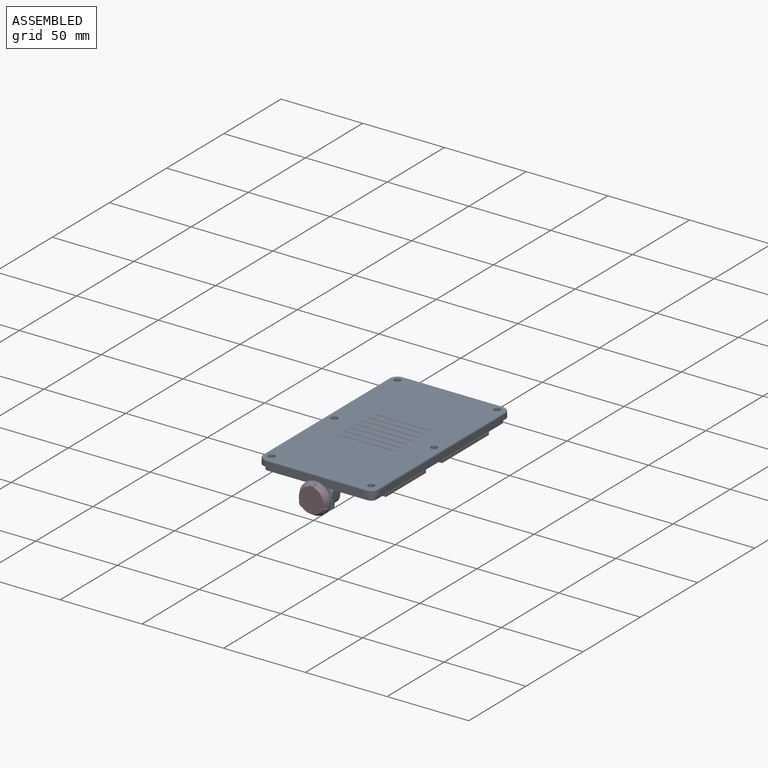
[diagram: assembled view]
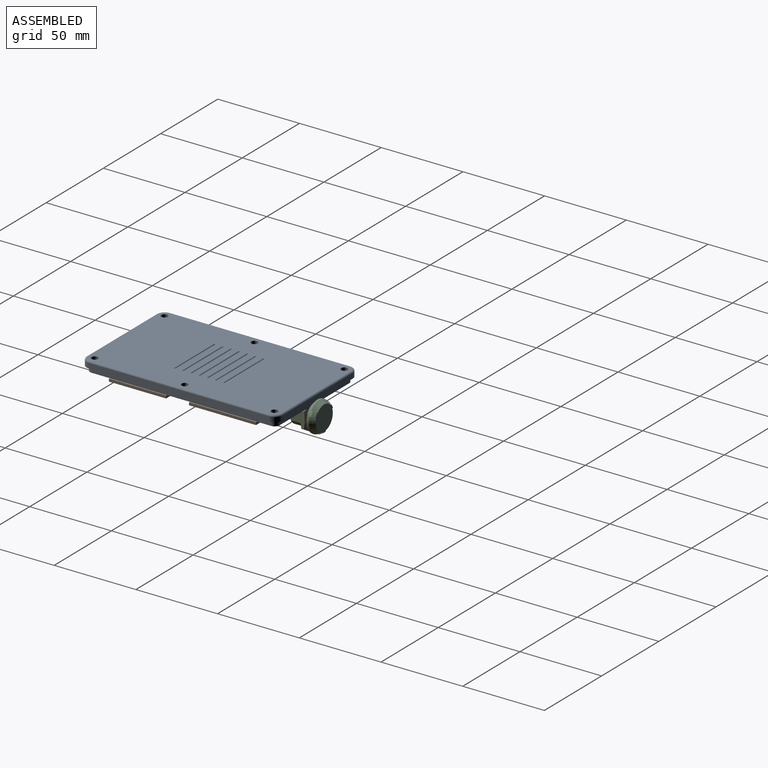
[diagram: assembled view, second angle]
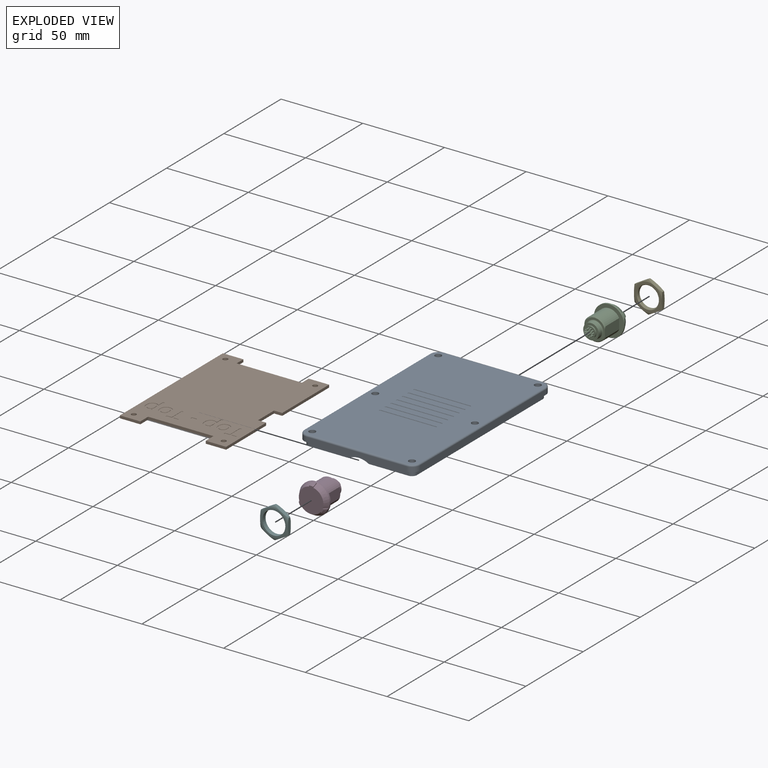
[diagram: exploded view]
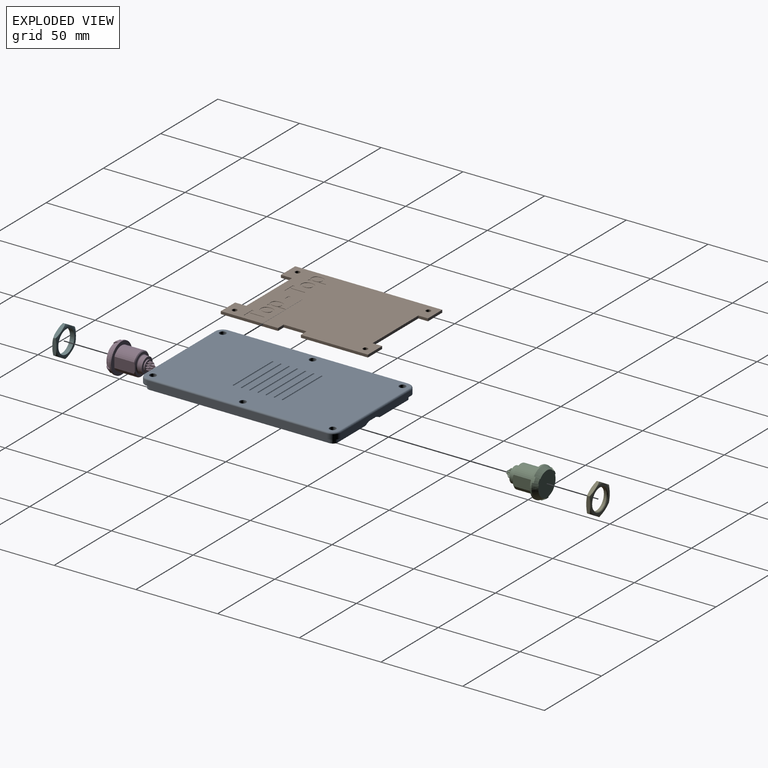
[diagram: exploded view, second angle]
ASSEMBLY  parts=6 mates=4
PART A: 78 faces, bbox 71.8x120.8x7 mm
  f0: plane 118x69mm, normal (0,0,1), area 7809.2mm2, adj f18,f19,f20,f21,f22,f23,f24,f25
  f1: plane 116x27.33mm, normal (0,0,-1), area 942.5mm2, adj f3,f4,f5,f26,f27,f28,f29,f30
  f2: plane 116x27.33mm, normal (0,0,-1), area 942.5mm2, adj f6,f7,f8,f26,f30,f31,f32,f33
  f3: cylinder r=1mm len=3mm, axis (0,0,1), area 18.8mm2, adj f1,f45
  f4: cylinder r=1mm len=3mm, axis (0,0,1), area 18.8mm2, adj f1,f43
  f5: cylinder r=1mm len=3mm, axis (0,0,1), area 18.8mm2, adj f1,f41
  f6: cylinder r=1mm len=3mm, axis (0,0,1), area 18.8mm2, adj f2,f38
  f7: cylinder r=1mm len=3mm, axis (0,0,1), area 18.8mm2, adj f2,f36
  f8: cylinder r=1mm len=3mm, axis (0,0,1), area 18.8mm2, adj f2,f34
  f9: plane 120x71mm, normal (0,0,-1), area 734.3mm2, adj f10,f11,f12,f13,f14,f15,f16,f17
  f10: plane 61x3mm, normal (0,1,0), area 183mm2, adj f9,f14,f17,f23
  f11: plane 110x3mm, normal (-1,0,0), area 330mm2, adj f9,f14,f15,f24
  f12: plane 61x3mm, normal (0,-1,0), area 183mm2, adj f9,f15,f16,f20
  f13: plane 110x3mm, normal (1,0,0), area 330mm2, adj f9,f16,f17,f19
  f14: cylinder r=5mm len=5mm, axis (0,0,1), area 23.6mm2, adj f9,f10,f11,f25
  f15: cylinder r=5mm len=5mm, axis (0,0,-1), area 23.6mm2, adj f9,f11,f12,f22
  f16: cylinder r=5mm len=5mm, axis (0,0,1), area 23.6mm2, adj f9,f12,f13,f18
  f17: cylinder r=5mm len=5mm, axis (0,0,-1), area 23.6mm2, adj f9,f10,f13,f21
  f18: torus R=4mm, axis (0,0,1), area 11.4mm2, adj f0,f16,f19,f20
  f19: cylinder r=1mm len=110mm, axis (0,-1,0), area 172.8mm2, adj f0,f13,f18,f21
  f20: cylinder r=1mm len=61mm, axis (-1,0,0), area 95.8mm2, adj f0,f12,f18,f22
  f21: torus R=4mm, axis (0,0,1), area 11.4mm2, adj f0,f17,f19,f23
  f22: torus R=4mm, axis (0,0,1), area 11.4mm2, adj f0,f15,f20,f24
  f23: cylinder r=1mm len=61mm, axis (1,0,0), area 95.8mm2, adj f0,f10,f21,f25
  f24: cylinder r=1mm len=110mm, axis (0,1,0), area 172.8mm2, adj f0,f11,f22,f25
  f25: torus R=4mm, axis (0,0,1), area 11.4mm2, adj f0,f14,f23,f24
  f26: plane 61x3mm, normal (0,1,0), area 168.4mm2, adj f1,f2,f9,f27,f33,f55
  f27: cylinder r=3mm len=3mm, axis (0,0,1), area 14.1mm2, adj f1,f9,f26,f28
  f28: plane 110x3mm, normal (1,0,0), area 330mm2, adj f1,f9,f27,f29
  f29: cylinder r=3mm len=3mm, axis (0,0,1), area 14.1mm2, adj f1,f9,f28,f30
  f30: plane 61x3mm, normal (0,-1,0), area 168.4mm2, adj f1,f2,f9,f29,f31,f56
  f31: cylinder r=3mm len=3mm, axis (0,0,1), area 14.1mm2, adj f2,f9,f30,f32
  f32: plane 110x3mm, normal (-1,0,0), area 330mm2, adj f2,f9,f31,f33
  f33: cylinder r=3mm len=3mm, axis (0,0,1), area 14.1mm2, adj f2,f9,f26,f32
  f34: plane 4x4mm, normal (0,0,1), area 9.4mm2, adj f8,f35
  f35: cylinder r=2mm len=4mm, axis (0,0,1), area 50.3mm2, adj f0,f34
  f36: plane 4x4mm, normal (0,0,1), area 9.4mm2, adj f7,f37
  f37: cylinder r=2mm len=4mm, axis (0,0,1), area 50.3mm2, adj f0,f36
  f38: plane 4x4mm, normal (0,0,1), area 9.4mm2, adj f6,f39
  f39: cylinder r=2mm len=4mm, axis (0,0,1), area 50.3mm2, adj f0,f38
  f40: cylinder r=2mm len=4mm, axis (0,0,1), area 50.3mm2, adj f0,f41
  f41: plane 4x4mm, normal (0,0,1), area 9.4mm2, adj f5,f40
  f42: cylinder r=2mm len=4mm, axis (0,0,1), area 50.3mm2, adj f0,f43
  f43: plane 4x4mm, normal (0,0,1), area 9.4mm2, adj f4,f42
  f44: cylinder r=2mm len=4mm, axis (0,0,1), area 50.3mm2, adj f0,f45
  f45: plane 4x4mm, normal (0,0,1), area 9.4mm2, adj f3,f44
  f46: plane 49x5.5mm, normal (0,1,0), area 254.9mm2, adj f1,f2,f47,f53,f54,f56
  f47: cylinder r=3mm len=5.5mm, axis (0,0,-1), area 25.9mm2, adj f2,f46,f48,f54
  f48: plane 98x5.5mm, normal (1,0,0), area 539mm2, adj f2,f47,f49,f54
  f49: cylinder r=3mm len=5.5mm, axis (0,0,-1), area 25.9mm2, adj f2,f48,f50,f54
  f50: plane 49x5.5mm, normal (0,-1,0), area 254.9mm2, adj f1,f2,f49,f51,f54,f55
  f51: cylinder r=3mm len=5.5mm, axis (0,0,-1), area 25.9mm2, adj f1,f50,f52,f54
  f52: plane 98x5.5mm, normal (-1,0,0), area 539mm2, adj f1,f51,f53,f54
  f53: cylinder r=3mm len=5.5mm, axis (0,0,-1), area 25.9mm2, adj f1,f46,f52,f54
  f54: plane 104x55mm, normal (0,0,-1), area 5712.3mm2, adj f46,f47,f48,f49,f50,f51,f52,f53
  f55: cylinder r=11.75mm len=12.34mm, axis (0,-1,0), area 77.9mm2, adj f1,f2,f26,f50
  f56: cylinder r=11.75mm len=12.34mm, axis (0,-1,0), area 77.9mm2, adj f1,f2,f30,f46
  f57: cylinder r=0.5mm len=34mm, axis (1,0,0), area 53.4mm2, adj f0,f76,f77
  f58: cylinder r=0.5mm len=34mm, axis (1,0,0), area 53.4mm2, adj f0,f66,f67
  f59: cylinder r=0.5mm len=34.5mm, axis (1,0,0), area 54.2mm2, adj f0,f60,f68
  f60: plane 1x0.5mm, normal (-1,0,0), area 0.4mm2, adj f0,f59
  f61: cylinder r=0.5mm len=34mm, axis (1,0,0), area 53.4mm2, adj f0,f74,f75
  f62: cylinder r=0.5mm len=34mm, axis (1,0,0), area 53.4mm2, adj f0,f72,f73
  f63: cylinder r=0.5mm len=34mm, axis (1,0,0), area 53.4mm2, adj f0,f70,f71
  f64: cylinder r=0.5mm len=34.5mm, axis (1,0,0), area 54.2mm2, adj f0,f65,f69
  f65: plane 1x0.5mm, normal (-1,0,0), area 0.4mm2, adj f0,f64
  f66: sphere r=0.5mm, area 0.8mm2, adj f0,f58
  f67: sphere r=0.5mm, area 0.8mm2, adj f0,f58
  f68: sphere r=0.5mm, area 0.8mm2, adj f0,f59
  f69: sphere r=0.5mm, area 0.8mm2, adj f0,f64
  f70: sphere r=0.5mm, area 0.8mm2, adj f0,f63
  f71: sphere r=0.5mm, area 0.8mm2, adj f0,f63
  f72: sphere r=0.5mm, area 0.8mm2, adj f0,f62
  f73: sphere r=0.5mm, area 0.8mm2, adj f0,f62
  f74: sphere r=0.5mm, area 0.8mm2, adj f0,f61
  f75: sphere r=0.5mm, area 0.8mm2, adj f0,f61
  f76: sphere r=0.5mm, area 0.8mm2, adj f0,f57
  f77: sphere r=0.5mm, area 0.8mm2, adj f0,f57
PART B: 137 faces, bbox 65x90x1.6 mm
  f0: plane 90x65mm, normal (0,0,-1), area 5031mm2, adj f1,f2,f3,f4,f5,f6,f7,f8
  f1: plane 12.5x1.6mm, normal (0,1,0), area 20mm2, adj f0,f2,f19,f21
  f2: plane 90x1.6mm, normal (-1,0,0), area 144mm2, adj f0,f1,f3,f21
  f3: plane 12.5x1.6mm, normal (0,-1,0), area 20mm2, adj f0,f2,f4,f21
  f4: plane 5.88x1.6mm, normal (1,0,0), area 9.4mm2, adj f0,f3,f5,f21
  f5: plane 40x1.6mm, normal (0,-1,0), area 64mm2, adj f0,f4,f6,f21
  f6: plane 5.88x1.6mm, normal (-1,0,0), area 9.4mm2, adj f0,f5,f7,f21
  f7: plane 12.5x1.6mm, normal (0,-1,0), area 20mm2, adj f0,f6,f8,f21
  f8: plane 41x1.6mm, normal (1,0,0), area 65.6mm2, adj f0,f7,f9,f21
  f9: plane 5x1.6mm, normal (0,1,0), area 8mm2, adj f0,f8,f10,f21
  f10: plane 14x1.6mm, normal (1,0,0), area 22.4mm2, adj f0,f9,f11,f21
  f11: plane 5x1.6mm, normal (0,-1,0), area 8mm2, adj f0,f10,f12,f21
  f12: plane 35x1.6mm, normal (1,0,0), area 56mm2, adj f0,f11,f13,f21
  f13: plane 12.5x1.6mm, normal (0,1,0), area 20mm2, adj f0,f12,f14,f21
  f14: plane 6.81x1.6mm, normal (-1,0,0), area 10.9mm2, adj f0,f13,f15,f21
  f15: plane 40x1.6mm, normal (0,1,0), area 64mm2, adj f0,f14,f19,f21
  f16: cylinder r=1.5mm len=3mm, axis (0,0,-1), area 15.1mm2, adj f0,f21
  f17: cylinder r=1.5mm len=3mm, axis (0,0,-1), area 15.1mm2, adj f0,f21
  f18: cylinder r=1.5mm len=3mm, axis (0,0,-1), area 15.1mm2, adj f0,f21
  f19: plane 6.81x1.6mm, normal (1,0,0), area 10.9mm2, adj f0,f1,f15,f21
  f20: cylinder r=1.5mm len=3mm, axis (0,0,-1), area 15.1mm2, adj f0,f21
  f21: plane 90x65mm, normal (0,0,1), area 5244mm2, adj f1,f2,f3,f4,f5,f6,f7,f8
  f22: extruded ~1.62x0.62mm, area 0.4mm2, adj f23,f46,f47,f133
  f23: extruded ~1.51x0.73mm, area 0.3mm2, adj f22,f24,f47,f133
  f24: extruded ~2.1x0.54mm, area 0.4mm2, adj f23,f25,f47,f133
  f25: extruded ~2.11x0.54mm, area 0.4mm2, adj f24,f26,f47,f133
  f26: extruded ~1.48x0.77mm, area 0.3mm2, adj f25,f27,f47,f133
  f27: extruded ~1.64x0.66mm, area 0.4mm2, adj f26,f28,f47,f133
  f28: extruded ~2.2x0.51mm, area 0.5mm2, adj f27,f29,f47,f133
  f29: plane 0.25x0.2mm, normal (1,0,0), area 0mm2, adj f28,f46,f47,f133
  f30: extruded ~1.3x0.26mm, area 0.3mm2, adj f0,f31,f45,f47
  f31: extruded ~2.23x1mm, area 0.5mm2, adj f0,f30,f32,f47
  f32: extruded ~2.8x0.8mm, area 0.6mm2, adj f0,f31,f33,f47
  f33: extruded ~2.78x0.79mm, area 0.6mm2, adj f0,f32,f34,f47
  f34: extruded ~2.24x0.99mm, area 0.5mm2, adj f0,f33,f35,f47
  f35: extruded ~1.3x0.27mm, area 0.3mm2, adj f0,f34,f36,f47
  f36: extruded ~0.99x0.87mm, area 0.3mm2, adj f0,f35,f37,f47
  f37: plane 0.2x0.05mm, normal (0,-1,0), area 0mm2, adj f0,f36,f38,f47
  f38: plane 1x0.2mm, normal (0.99,-0.15,0), area 0.2mm2, adj f0,f37,f39,f47
  f39: plane 0.9x0.2mm, normal (0,-1,0), area 0.2mm2, adj f0,f38,f40,f47
  f40: plane 10.58x0.2mm, normal (-1,0,0), area 2.1mm2, adj f0,f39,f41,f47
  f41: plane 1.11x0.2mm, normal (0,1,0), area 0.2mm2, adj f0,f40,f42,f47
  f42: plane 3.01x0.2mm, normal (1,0,0), area 0.6mm2, adj f0,f41,f43,f47
  f43: extruded ~1.21x0.2mm, area 0.2mm2, adj f0,f42,f44,f47
  f44: plane 0.2x0.08mm, normal (0,1,0), area 0mm2, adj f0,f43,f45,f47
  f45: extruded ~0.99x0.81mm, area 0.3mm2, adj f0,f30,f44,f47
  f46: extruded ~1.97x0.51mm, area 0.4mm2, adj f22,f29,f47,f133
  f47: plane 10.71x6.43mm, normal (0,0,-1), area 26.4mm2, adj f22,f23,f24,f25,f26,f27,f28,f29
  f48: extruded ~2.13x0.56mm, area 0.4mm2, adj f49,f64,f65,f134
  f49: extruded ~2.12x0.55mm, area 0.4mm2, adj f48,f50,f65,f134
  f50: extruded ~1.64x0.71mm, area 0.4mm2, adj f49,f51,f65,f134
  f51: extruded ~1.66x0.72mm, area 0.4mm2, adj f50,f52,f65,f134
  f52: extruded ~2.11x0.56mm, area 0.4mm2, adj f51,f53,f65,f134
  f53: extruded ~2.14x0.56mm, area 0.4mm2, adj f52,f54,f65,f134
  f54: extruded ~1.65x0.73mm, area 0.4mm2, adj f53,f64,f65,f134
  f55: extruded ~2.79x0.9mm, area 0.6mm2, adj f0,f56,f63,f65
  f56: extruded ~2.76x0.9mm, area 0.6mm2, adj f0,f55,f57,f65
  f57: extruded ~2.43x1.02mm, area 0.5mm2, adj f0,f56,f58,f65
  f58: extruded ~2.48x1mm, area 0.6mm2, adj f0,f57,f59,f65
  f59: extruded ~2.78x0.89mm, area 0.6mm2, adj f0,f58,f60,f65
  f60: extruded ~2.01x0.41mm, area 0.4mm2, adj f0,f59,f61,f65
  f61: extruded ~1.32x1.17mm, area 0.4mm2, adj f0,f60,f62,f65
  f62: extruded ~1.74x0.46mm, area 0.4mm2, adj f0,f61,f63,f65
  f63: extruded ~2.48x1mm, area 0.6mm2, adj f0,f55,f62,f65
  f64: extruded ~1.64x0.73mm, area 0.4mm2, adj f48,f54,f65,f134
  f65: plane 7.57x6.71mm, normal (0,0,-1), area 20.5mm2, adj f48,f49,f50,f51,f52,f53,f54,f55
  f66: extruded ~1.62x0.62mm, area 0.4mm2, adj f67,f90,f91,f135
  f67: extruded ~1.51x0.73mm, area 0.3mm2, adj f66,f68,f91,f135
  f68: extruded ~2.1x0.54mm, area 0.4mm2, adj f67,f69,f91,f135
  f69: extruded ~2.11x0.54mm, area 0.4mm2, adj f68,f70,f91,f135
  f70: extruded ~1.48x0.77mm, area 0.3mm2, adj f69,f71,f91,f135
  f71: extruded ~1.64x0.66mm, area 0.4mm2, adj f70,f72,f91,f135
  f72: extruded ~2.2x0.51mm, area 0.5mm2, adj f71,f73,f91,f135
  f73: plane 0.25x0.2mm, normal (1,0,0), area 0mm2, adj f72,f90,f91,f135
  f74: extruded ~1.3x0.26mm, area 0.3mm2, adj f0,f75,f89,f91
  f75: extruded ~2.23x1mm, area 0.5mm2, adj f0,f74,f76,f91
  f76: extruded ~2.8x0.8mm, area 0.6mm2, adj f0,f75,f77,f91
  f77: extruded ~2.78x0.79mm, area 0.6mm2, adj f0,f76,f78,f91
  f78: extruded ~2.24x0.99mm, area 0.5mm2, adj f0,f77,f79,f91
  f79: extruded ~1.3x0.27mm, area 0.3mm2, adj f0,f78,f80,f91
  f80: extruded ~0.99x0.87mm, area 0.3mm2, adj f0,f79,f81,f91
  f81: plane 0.2x0.05mm, normal (0,-1,0), area 0mm2, adj f0,f80,f82,f91
  f82: plane 1x0.2mm, normal (0.99,-0.15,0), area 0.2mm2, adj f0,f81,f83,f91
  f83: plane 0.9x0.2mm, normal (0,-1,0), area 0.2mm2, adj f0,f82,f84,f91
  f84: plane 10.58x0.2mm, normal (-1,0,0), area 2.1mm2, adj f0,f83,f85,f91
  f85: plane 1.11x0.2mm, normal (0,1,0), area 0.2mm2, adj f0,f84,f86,f91
  f86: plane 3.01x0.2mm, normal (1,0,0), area 0.6mm2, adj f0,f85,f87,f91
  f87: extruded ~1.21x0.2mm, area 0.2mm2, adj f0,f86,f88,f91
  f88: plane 0.2x0.08mm, normal (0,1,0), area 0mm2, adj f0,f87,f89,f91
  f89: extruded ~0.99x0.81mm, area 0.3mm2, adj f0,f74,f88,f91
  f90: extruded ~1.97x0.51mm, area 0.4mm2, adj f66,f73,f91,f135
  f91: plane 10.71x6.43mm, normal (0,0,-1), area 26.4mm2, adj f66,f67,f68,f69,f70,f71,f72,f73
  f92: extruded ~2.13x0.56mm, area 0.4mm2, adj f93,f108,f109,f136
  f93: extruded ~2.12x0.55mm, area 0.4mm2, adj f92,f94,f109,f136
  f94: extruded ~1.64x0.71mm, area 0.4mm2, adj f93,f95,f109,f136
  f95: extruded ~1.66x0.72mm, area 0.4mm2, adj f94,f96,f109,f136
  f96: extruded ~2.11x0.56mm, area 0.4mm2, adj f95,f97,f109,f136
  f97: extruded ~2.14x0.56mm, area 0.4mm2, adj f96,f98,f109,f136
  f98: extruded ~1.65x0.73mm, area 0.4mm2, adj f97,f108,f109,f136
  f99: extruded ~2.79x0.9mm, area 0.6mm2, adj f0,f100,f107,f109
  f100: extruded ~2.76x0.9mm, area 0.6mm2, adj f0,f99,f101,f109
  f101: extruded ~2.43x1.02mm, area 0.5mm2, adj f0,f100,f102,f109
  f102: extruded ~2.48x1mm, area 0.6mm2, adj f0,f101,f103,f109
  f103: extruded ~2.78x0.89mm, area 0.6mm2, adj f0,f102,f104,f109
  f104: extruded ~2.01x0.41mm, area 0.4mm2, adj f0,f103,f105,f109
  f105: extruded ~1.32x1.17mm, area 0.4mm2, adj f0,f104,f106,f109
  f106: extruded ~1.74x0.46mm, area 0.4mm2, adj f0,f105,f107,f109
  f107: extruded ~2.48x1mm, area 0.6mm2, adj f0,f99,f106,f109
  f108: extruded ~1.64x0.73mm, area 0.4mm2, adj f92,f98,f109,f136
  f109: plane 7.57x6.71mm, normal (0,0,-1), area 20.5mm2, adj f92,f93,f94,f95,f96,f97,f98,f99
  f110: plane 1.13x0.2mm, normal (0,1,0), area 0.2mm2, adj f0,f111,f117,f118
  f111: plane 8.73x0.2mm, normal (1,0,0), area 1.7mm2, adj f0,f110,f112,f118
  f112: plane 3.08x0.2mm, normal (0,1,0), area 0.6mm2, adj f0,f111,f113,f118
  f113: plane 1.01x0.2mm, normal (1,0,0), area 0.2mm2, adj f0,f112,f114,f118
  f114: plane 7.3x0.2mm, normal (0,-1,0), area 1.5mm2, adj f0,f113,f115,f118
  f115: plane 1.01x0.2mm, normal (-1,0,0), area 0.2mm2, adj f0,f114,f116,f118
  f116: plane 3.08x0.2mm, normal (0,1,0), area 0.6mm2, adj f0,f115,f117,f118
  f117: plane 8.73x0.2mm, normal (-1,0,0), area 1.7mm2, adj f0,f110,f116,f118
  f118: plane 9.74x7.3mm, normal (0,0,-1), area 17.2mm2, adj f110,f111,f112,f113,f114,f115,f116,f117
  f119: plane 1.01x0.2mm, normal (-1,0,0), area 0.2mm2, adj f0,f120,f122,f123
  f120: plane 3.27x0.2mm, normal (0,1,0), area 0.7mm2, adj f0,f119,f121,f123
  f121: plane 1.01x0.2mm, normal (1,0,0), area 0.2mm2, adj f0,f120,f122,f123
  f122: plane 3.27x0.2mm, normal (0,-1,0), area 0.7mm2, adj f0,f119,f121,f123
  f123: plane 3.27x1.01mm, normal (0,0,-1), area 3.3mm2, adj f119,f120,f121,f122
  f124: plane 1.13x0.2mm, normal (0,1,0), area 0.2mm2, adj f0,f125,f131,f132
  f125: plane 8.73x0.2mm, normal (1,0,0), area 1.7mm2, adj f0,f124,f126,f132
  f126: plane 3.08x0.2mm, normal (0,1,0), area 0.6mm2, adj f0,f125,f127,f132
  f127: plane 1.01x0.2mm, normal (1,0,0), area 0.2mm2, adj f0,f126,f128,f132
  f128: plane 7.3x0.2mm, normal (0,-1,0), area 1.5mm2, adj f0,f127,f129,f132
  f129: plane 1.01x0.2mm, normal (-1,0,0), area 0.2mm2, adj f0,f128,f130,f132
  f130: plane 3.08x0.2mm, normal (0,1,0), area 0.6mm2, adj f0,f129,f131,f132
  f131: plane 8.73x0.2mm, normal (-1,0,0), area 1.7mm2, adj f0,f124,f130,f132
  f132: plane 9.74x7.3mm, normal (0,0,-1), area 17.2mm2, adj f124,f125,f126,f127,f128,f129,f130,f131
  f133: plane 5.7x4.18mm, normal (0,0,-1), area 19.9mm2, adj f22,f23,f24,f25,f26,f27,f28,f29
  f134: plane 5.7x4.42mm, normal (0,0,-1), area 20.9mm2, adj f48,f49,f50,f51,f52,f53,f54,f64
  f135: plane 5.7x4.18mm, normal (0,0,-1), area 19.9mm2, adj f66,f67,f68,f69,f70,f71,f72,f73
  f136: plane 5.7x4.42mm, normal (0,0,-1), area 20.9mm2, adj f92,f93,f94,f95,f96,f97,f98,f108
PART C: 97 faces, bbox 18.6x18.6x24.3 mm
  f0: torus R=5.28mm, axis (0,0,-1), area 24.5mm2, adj f32,f33
  f1: cylinder r=9.25mm len=18.5mm, axis (0,0,-1), area 67.8mm2, adj f4,f75,f76,f77,f78,f79,f80,f81
  f2: cylinder r=3.32mm len=6.65mm, axis (0,0,1), area 16.7mm2, adj f34,f41
  f3: cylinder r=0.22mm len=2.24mm, axis (0,0,-1), area 2.9mm2, adj f74,f82,f95
  f4: cone r=8.38mm half-angle=30deg, axis (0,0,1), area 50.7mm2, adj f1,f76,f80,f96
  f5: cylinder r=0.4mm len=2.24mm, axis (0,0,-1), area 5.3mm2, adj f41,f74,f82
  f6: cylinder r=0.4mm len=2.24mm, axis (0,0,-1), area 5.3mm2, adj f41,f54,f64
  f7: cylinder r=0.4mm len=2.24mm, axis (0,0,-1), area 5.3mm2, adj f41,f53,f63
  f8: cylinder r=0.4mm len=2.24mm, axis (0,0,-1), area 5.3mm2, adj f41,f52,f62
  f9: cylinder r=0.4mm len=2.24mm, axis (0,0,-1), area 5.3mm2, adj f41,f51,f61
  f10: cylinder r=0.4mm len=2.24mm, axis (0,0,-1), area 5.3mm2, adj f41,f50,f60
  f11: cylinder r=0.4mm len=2.24mm, axis (0,0,-1), area 5.3mm2, adj f41,f49,f59
  f12: cylinder r=0.4mm len=2.24mm, axis (0,0,-1), area 5.3mm2, adj f41,f48,f58
  f13: cylinder r=0.4mm len=2.24mm, axis (0,0,-1), area 5.3mm2, adj f41,f47,f57
  f14: cylinder r=0.4mm len=2.24mm, axis (0,0,-1), area 5.3mm2, adj f41,f55,f56
  f15: cylinder r=0.22mm len=2.24mm, axis (0,0,-1), area 2.9mm2, adj f55,f56,f83
  f16: cylinder r=0.22mm len=2.24mm, axis (0,0,-1), area 2.9mm2, adj f54,f64,f66
  f17: cylinder r=0.22mm len=2.24mm, axis (0,0,-1), area 2.9mm2, adj f53,f63,f67
  f18: cylinder r=0.22mm len=2.24mm, axis (0,0,-1), area 2.9mm2, adj f52,f62,f68
  f19: cylinder r=0.22mm len=2.24mm, axis (0,0,-1), area 2.9mm2, adj f51,f61,f69
  f20: cylinder r=0.22mm len=2.24mm, axis (0,0,-1), area 2.9mm2, adj f50,f60,f70
  f21: cylinder r=0.22mm len=2.24mm, axis (0,0,-1), area 2.9mm2, adj f49,f59,f71
  f22: cylinder r=0.22mm len=2.24mm, axis (0,0,-1), area 2.9mm2, adj f48,f58,f72
  f23: cylinder r=0.22mm len=2.24mm, axis (0,0,-1), area 2.9mm2, adj f47,f57,f73
  f24: cylinder r=0.22mm len=3.74mm, axis (0,0,-1), area 5mm2, adj f44,f45,f65
  f25: cylinder r=0.4mm len=3.74mm, axis (0,0,-1), area 9mm2, adj f41,f44,f45
  f26: cylinder r=0.4mm len=3.74mm, axis (0,0,-1), area 9mm2, adj f37,f40,f41
  f27: cylinder r=0.4mm len=3.74mm, axis (0,0,-1), area 9mm2, adj f36,f39,f41
  f28: cylinder r=0.4mm len=3.74mm, axis (0,0,-1), area 9mm2, adj f35,f38,f41
  f29: cylinder r=0.22mm len=3.74mm, axis (0,0,-1), area 5mm2, adj f37,f40,f42
  f30: cylinder r=0.22mm len=3.74mm, axis (0,0,-1), area 5mm2, adj f36,f39,f43
  f31: cylinder r=0.22mm len=3.74mm, axis (0,0,-1), area 5mm2, adj f35,f38,f46
  f32: cylinder r=4.77mm len=9.55mm, axis (0,0,-1), area 81mm2, adj f0,f34
  f33: plane 13x12.5mm, normal (0,0,1), area 44.1mm2, adj f0,f88,f89,f90,f92
  f34: plane 9.55x9.55mm, normal (0,0,1), area 36.9mm2, adj f2,f32
  f35: cylinder r=0.39mm len=0.8mm, axis (0,1,0), area 0.2mm2, adj f28,f31,f38
  f36: cylinder r=0.39mm len=0.8mm, axis (1,0,0), area 0.2mm2, adj f27,f30,f39
  f37: cylinder r=0.39mm len=0.8mm, axis (0,-1,0), area 0.2mm2, adj f26,f29,f40
  f38: plane 0.8x0.4mm, normal (0,0,1), area 0.2mm2, adj f28,f31,f35
  f39: plane 0.8x0.4mm, normal (0,0,1), area 0.2mm2, adj f27,f30,f36
  f40: plane 0.8x0.4mm, normal (0,0,1), area 0.2mm2, adj f26,f29,f37
  f41: plane 6.65x6.65mm, normal (0,0,1), area 27.7mm2, adj f2,f5,f6,f7,f8,f9,f10,f11
  f42: plane 0.44x0.44mm, normal (0,0,1), area 0.2mm2, adj f29
  f43: plane 0.44x0.44mm, normal (0,0,1), area 0.2mm2, adj f30
  f44: cylinder r=0.39mm len=0.8mm, axis (-1,0,0), area 0.2mm2, adj f24,f25,f45
  f45: plane 0.8x0.4mm, normal (0,0,1), area 0.2mm2, adj f24,f25,f44
  f46: plane 0.44x0.44mm, normal (0,0,1), area 0.2mm2, adj f31
  f47: cylinder r=0.38mm len=0.8mm, axis (0,1,0), area 0.2mm2, adj f13,f23,f57
  f48: cylinder r=0.38mm len=0.88mm, axis (0.59,0.81,0), area 0.2mm2, adj f12,f22,f58
  f49: cylinder r=0.38mm len=0.88mm, axis (0.95,0.31,0), area 0.2mm2, adj f11,f21,f59
  f50: cylinder r=0.38mm len=0.88mm, axis (0.95,-0.31,0), area 0.2mm2, adj f10,f20,f60
  f51: cylinder r=0.38mm len=0.88mm, axis (0.59,-0.81,0), area 0.2mm2, adj f9,f19,f61
  f52: cylinder r=0.38mm len=0.8mm, axis (0,-1,0), area 0.2mm2, adj f8,f18,f62
  f53: cylinder r=0.38mm len=0.88mm, axis (-0.59,-0.81,0), area 0.2mm2, adj f7,f17,f63
  f54: cylinder r=0.38mm len=0.88mm, axis (-0.95,-0.31,0), area 0.2mm2, adj f6,f16,f64
  f55: cylinder r=0.38mm len=0.88mm, axis (-0.59,0.81,0), area 0.2mm2, adj f14,f15,f56
  f56: plane 0.72x0.64mm, normal (0,0,1), area 0.2mm2, adj f14,f15,f55
  f57: plane 0.8x0.4mm, normal (0,0,1), area 0.2mm2, adj f13,f23,f47
  f58: plane 0.72x0.64mm, normal (0,0,1), area 0.2mm2, adj f12,f22,f48
  f59: plane 0.78x0.52mm, normal (0,0,1), area 0.2mm2, adj f11,f21,f49
  f60: plane 0.78x0.52mm, normal (0,0,1), area 0.2mm2, adj f10,f20,f50
  f61: plane 0.72x0.64mm, normal (0,0,1), area 0.2mm2, adj f9,f19,f51
  f62: plane 0.8x0.4mm, normal (0,0,1), area 0.2mm2, adj f8,f18,f52
  f63: plane 0.72x0.64mm, normal (0,0,1), area 0.2mm2, adj f7,f17,f53
  f64: plane 0.78x0.52mm, normal (0,0,1), area 0.2mm2, adj f6,f16,f54
  f65: plane 0.44x0.44mm, normal (0,0,1), area 0.2mm2, adj f24
  f66: plane 0.44x0.44mm, normal (0,0,1), area 0.2mm2, adj f16
  f67: plane 0.44x0.44mm, normal (0,0,1), area 0.2mm2, adj f17
  f68: plane 0.44x0.44mm, normal (0,0,1), area 0.2mm2, adj f18
  f69: plane 0.44x0.44mm, normal (0,0,1), area 0.2mm2, adj f19
  f70: plane 0.44x0.44mm, normal (0,0,1), area 0.2mm2, adj f20
  f71: plane 0.44x0.44mm, normal (0,0,1), area 0.2mm2, adj f21
  f72: plane 0.44x0.44mm, normal (0,0,1), area 0.2mm2, adj f22
  f73: plane 0.44x0.44mm, normal (0,0,1), area 0.2mm2, adj f23
  f74: cylinder r=0.38mm len=0.88mm, axis (-0.95,0.31,0), area 0.2mm2, adj f3,f5,f82
  f75: cone r=8.67mm half-angle=30deg, axis (0,0,1), area 7mm2, adj f1,f76,f77,f96
  f76: plane 3x1.33mm, normal (0.64,0.77,0), area 1.4mm2, adj f1,f4,f75,f96
  f77: plane 3x1.63mm, normal (-0.34,-0.94,0), area 1.4mm2, adj f1,f75,f87,f96
  f78: cone r=8.67mm half-angle=30deg, axis (0,0,1), area 7mm2, adj f1,f79,f80,f96
  f79: plane 3x1.63mm, normal (0.34,-0.94,0), area 1.4mm2, adj f1,f78,f81,f96
  f80: plane 3x1.33mm, normal (-0.64,0.77,0), area 1.4mm2, adj f1,f4,f78,f96
  f81: cone r=8.38mm half-angle=30deg, axis (0,0,1), area 50.7mm2, adj f1,f79,f86,f96
  f82: plane 0.78x0.52mm, normal (0,0,1), area 0.2mm2, adj f3,f5,f74
  f83: plane 0.44x0.44mm, normal (0,0,1), area 0.2mm2, adj f15
  f84: cone r=8.67mm half-angle=30deg, axis (0,0,1), area 7mm2, adj f1,f85,f86,f96
  f85: plane 3x1.71mm, normal (-0.98,0.17,0), area 1.4mm2, adj f1,f84,f87,f96
  f86: plane 3x1.71mm, normal (0.98,0.17,0), area 1.4mm2, adj f1,f81,f84,f96
  f87: cone r=8.38mm half-angle=30deg, axis (0,0,1), area 50.7mm2, adj f1,f77,f85,f96
  f88: plane 12.6x6.41mm, normal (-1,0,0), area 78.2mm2, adj f33,f90,f91,f92,f93,f94
  f89: plane 12.6x6.41mm, normal (1,0,0), area 78.2mm2, adj f33,f90,f91,f92,f93,f94
  f90: cone r=6.75mm half-angle=45deg, axis (0,0,-1), area 11.4mm2, adj f33,f88,f89,f91
  f91: cylinder r=7mm len=12.5mm, axis (0,0,1), area 185.4mm2, adj f88,f89,f90,f94
  f92: cone r=6.75mm half-angle=45deg, axis (0,0,-1), area 11.4mm2, adj f33,f88,f89,f93
  f93: cylinder r=7mm len=12.5mm, axis (0,0,1), area 185.4mm2, adj f88,f89,f92,f94
  f94: plane 18.5x18.5mm, normal (0,0,1), area 121.2mm2, adj f1,f88,f89,f91,f93
  f95: plane 0.44x0.44mm, normal (0,0,1), area 0.2mm2, adj f3
  f96: plane 15.61x15.21mm, normal (0,0,-1), area 182.3mm2, adj f4,f75,f76,f77,f78,f79,f80,f81
PART D: same geometry as C
PART E: 29 faces, bbox 19.6x19.6x2.5 mm
  f0: cone r=9.16mm half-angle=70deg, axis (0,0,-1), area 4.1mm2, adj f7,f9,f21,f27
  f1: cone r=9.16mm half-angle=70deg, axis (0,0,-1), area 4.1mm2, adj f7,f14,f15,f28
  f2: cone r=9.16mm half-angle=70deg, axis (0,0,1), area 4.1mm2, adj f8,f9,f21,f27
  f3: cone r=9.16mm half-angle=70deg, axis (0,0,1), area 4.1mm2, adj f8,f14,f15,f28
  f4: cone r=6.7mm half-angle=45deg, axis (0,0,-1), area 23.8mm2, adj f5,f8
  f5: cylinder r=6.5mm len=13mm, axis (0,0,1), area 69.4mm2, adj f4,f6
  f6: cone r=6.7mm half-angle=45deg, axis (0,0,1), area 23.8mm2, adj f5,f7
  f7: plane 17x17mm, normal (0,0,1), area 77.4mm2, adj f0,f1,f6,f22,f23,f24,f25
  f8: plane 17x17mm, normal (0,0,-1), area 77.4mm2, adj f2,f3,f4,f16,f17,f19,f20
  f9: cylinder r=9.8mm len=1.55mm, axis (0,0,1), area 0.1mm2, adj f0,f2,f21,f27
  f10: cylinder r=9.8mm len=1.55mm, axis (0,0,1), area 0.1mm2, adj f20,f25,f26,f27
  f11: cylinder r=9.8mm len=1.55mm, axis (0,0,1), area 0.1mm2, adj f18,f19,f21,f24
  f12: cylinder r=9.8mm len=1.55mm, axis (0,0,1), area 0.1mm2, adj f17,f23,f26,f28
  f13: cylinder r=9.8mm len=1.55mm, axis (0,0,1), area 0.1mm2, adj f15,f16,f18,f22
  f14: cylinder r=9.8mm len=1.55mm, axis (0,0,1), area 0.1mm2, adj f1,f3,f15,f28
  f15: plane 8.45x4.88mm, normal (-0.5,-0.87,0), area 21.2mm2, adj f1,f3,f13,f14,f16,f22
  f16: cone r=9.16mm half-angle=70deg, axis (0,0,1), area 4.1mm2, adj f8,f13,f15,f18
  f17: cone r=9.16mm half-angle=70deg, axis (0,0,1), area 4.1mm2, adj f8,f12,f26,f28
  f18: plane 9.76x2.5mm, normal (-1,0,0), area 21.2mm2, adj f11,f13,f16,f19,f22,f24
  f19: cone r=9.16mm half-angle=70deg, axis (0,0,1), area 4.1mm2, adj f8,f11,f18,f21
  f20: cone r=9.16mm half-angle=70deg, axis (0,0,1), area 4.1mm2, adj f8,f10,f26,f27
  f21: plane 8.45x4.88mm, normal (-0.5,0.87,0), area 21.2mm2, adj f0,f2,f9,f11,f19,f24
  f22: cone r=9.16mm half-angle=70deg, axis (0,0,-1), area 4.1mm2, adj f7,f13,f15,f18
  f23: cone r=9.16mm half-angle=70deg, axis (0,0,-1), area 4.1mm2, adj f7,f12,f26,f28
  f24: cone r=9.16mm half-angle=70deg, axis (0,0,-1), area 4.1mm2, adj f7,f11,f18,f21
  f25: cone r=9.16mm half-angle=70deg, axis (0,0,-1), area 4.1mm2, adj f7,f10,f26,f27
  f26: plane 9.76x2.5mm, normal (1,0,0), area 21.2mm2, adj f10,f12,f17,f20,f23,f25
  f27: plane 8.45x4.88mm, normal (0.5,0.87,0), area 21.2mm2, adj f0,f2,f9,f10,f20,f25
  f28: plane 8.45x4.88mm, normal (0.5,-0.87,0), area 21.2mm2, adj f1,f3,f12,f14,f17,f23
PART F: 17 faces, bbox 21.6x21.6x2.7 mm
  f0: torus R=7.83mm, axis (0,0,-1), area 59.8mm2, adj f3,f4,f5,f6,f7,f8,f9,f10
  f1: torus R=7.83mm, axis (0,0,1), area 59.8mm2, adj f3,f4,f5,f6,f7,f8,f9,f10
  f2: cylinder r=7mm len=14mm, axis (0,0,-1), area 118.8mm2, adj f15,f16
  f3: cylinder r=9.75mm len=1.31mm, axis (0,0,1), area 0.3mm2, adj f0,f1,f12,f13
  f4: cylinder r=9.75mm len=1.31mm, axis (0,0,1), area 0.3mm2, adj f0,f1,f13,f14
  f5: cylinder r=9.75mm len=1.31mm, axis (0,0,1), area 0.3mm2, adj f0,f1,f9,f14
  f6: cylinder r=9.75mm len=1.31mm, axis (0,0,1), area 0.3mm2, adj f0,f1,f10,f12
  f7: cylinder r=9.75mm len=1.31mm, axis (0,0,1), area 0.3mm2, adj f0,f1,f10,f11
  f8: cylinder r=9.75mm len=1.31mm, axis (0,0,1), area 0.3mm2, adj f0,f1,f9,f11
  f9: plane 9.55x2.55mm, normal (1,0,0), area 21.2mm2, adj f0,f1,f5,f8
  f10: plane 8.27x4.78mm, normal (-0.5,-0.87,0), area 21.2mm2, adj f0,f1,f6,f7
  f11: plane 8.27x4.78mm, normal (0.5,-0.87,0), area 21.3mm2, adj f0,f1,f7,f8
  f12: plane 9.55x2.55mm, normal (-1,0,0), area 21.2mm2, adj f0,f1,f3,f6
  f13: plane 8.27x4.78mm, normal (-0.5,0.87,0), area 21.3mm2, adj f0,f1,f3,f4
  f14: plane 8.27x4.78mm, normal (0.5,0.87,0), area 21.3mm2, adj f0,f1,f4,f5
  f15: plane 15.66x15.66mm, normal (0,0,1), area 38.7mm2, adj f0,f2
  f16: plane 15.66x15.66mm, normal (0,0,-1), area 38.7mm2, adj f1,f2
PLACE A t=(-49.69,261.44,-200.99)mm
PLACE B rot(axis=(1,0,0),180deg) t=(-49.69,261.44,-183.99)mm
PLACE C rot(axis=(1,0,0),90deg) t=(-49.69,325.44,-188.99)mm
PLACE D rot(axis=(-1,0,0),90deg) t=(-49.69,197.44,-188.99)mm
PLACE E rot(axis=(1,0,0),90deg) t=(-49.69,328.24,-188.99)mm
PLACE F rot(axis=(-1,0,0),90deg) t=(-49.69,190.44,-188.99)mm
MATE cylindrical F.f2 <-> D.f1  axis (0,1,0) through (-49.69,206.14,-188.99)mm
MATE planar D.f75 <-> A.f12  axis (0,1,0) through (-49.69,201.44,-188.99)mm
MATE cylindrical E.f0 <-> C.f1  axis (0,-1,0) through (-49.69,316.94,-188.99)mm
MATE planar A.f10 <-> C.f94  axis (0,1,0) through (-49.69,321.44,-178.49)mm
